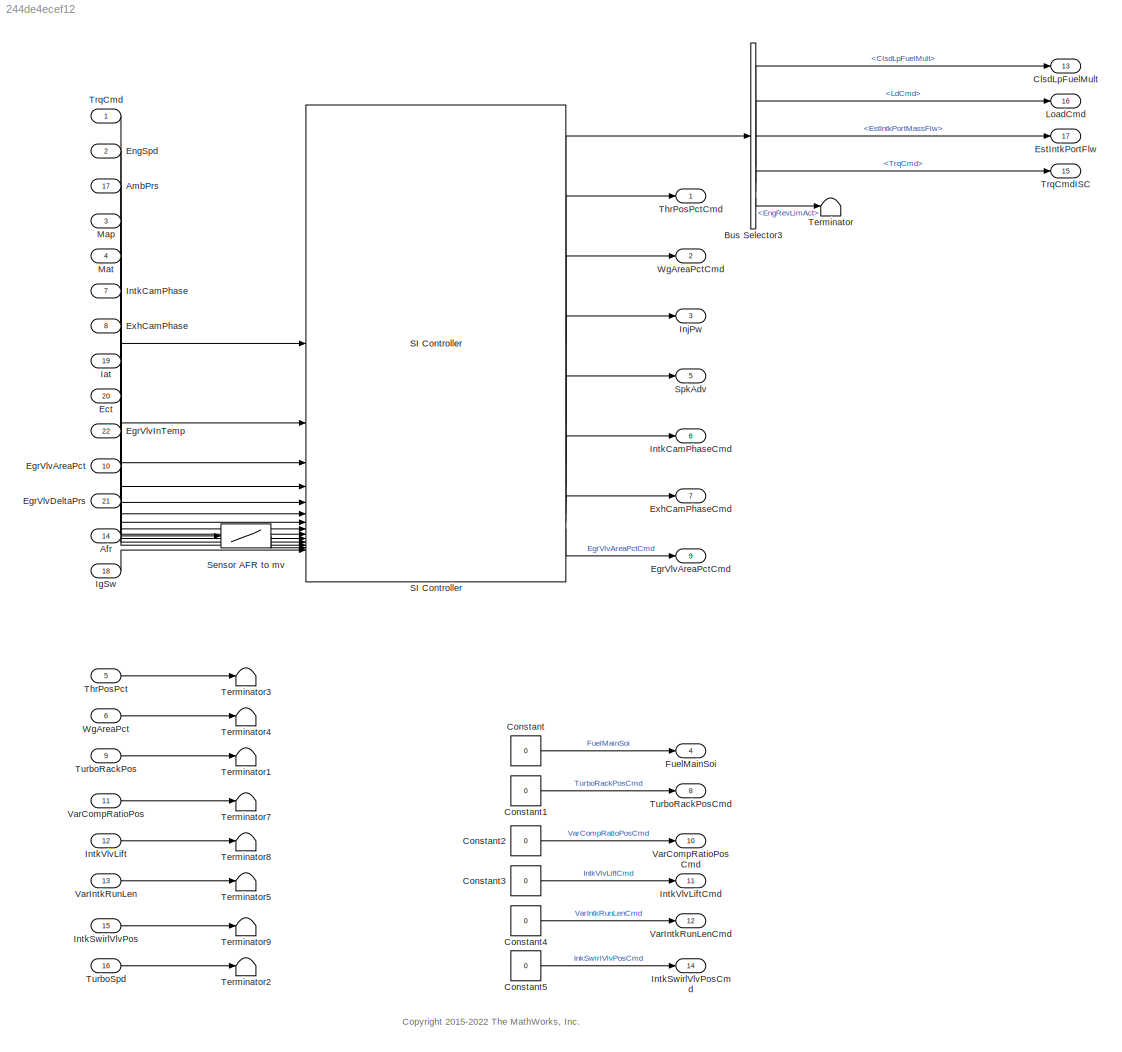
MODEL slx_244de4ecef12
KIND model
BLOCK [Inport] Afr
  OutDataTypeStr = double
  Port = 14
  PortDimensions = 1
  Unit = 1
BLOCK [Inport] AmbPrs
  OutDataTypeStr = double
  Port = 17
  PortDimensions = 1
  Unit = Pa
BLOCK [BusSelector] Bus Selector3
  OutputSignals = ClsdLpFuelMult,LdCmd,EstIntkPortMassFlw,TrqCmd,EngRevLimAct
BLOCK [Outport] ClsdLpFuelMult
  OutDataTypeStr = double
  Port = 13
  PortDimensions = 1
  Unit = 1
  VectorParamsAs1DForOutWhenUnconnected = off
BLOCK [Constant] Constant
  SampleTime = -1
  Value = 0
BLOCK [Constant] Constant1
  SampleTime = -1
  Value = 0
BLOCK [Constant] Constant2
  SampleTime = -1
  Value = 0
BLOCK [Constant] Constant3
  SampleTime = -1
  Value = 0
BLOCK [Constant] Constant4
  SampleTime = -1
  Value = 0
BLOCK [Constant] Constant5
  SampleTime = -1
  Value = 0
BLOCK [Inport] Ect
  OutDataTypeStr = double
  Port = 20
  PortDimensions = 1
  Unit = K
BLOCK [Inport] EgrVlvAreaPct
  OutDataTypeStr = double
  Port = 10
  PortDimensions = 1
  Unit = %
BLOCK [Outport] EgrVlvAreaPctCmd
  OutDataTypeStr = double
  Port = 9
  PortDimensions = 1
  Unit = %
  VectorParamsAs1DForOutWhenUnconnected = off
BLOCK [Inport] EgrVlvDeltaPrs
  OutDataTypeStr = double
  Port = 21
  PortDimensions = 1
  Unit = Pa
BLOCK [Inport] EgrVlvInTemp
  OutDataTypeStr = double
  Port = 22
  PortDimensions = 1
  Unit = K
BLOCK [Inport] EngSpd
  OutDataTypeStr = double
  Port = 2
  PortDimensions = 1
  Unit = rpm
BLOCK [Outport] EstIntkPortFlw
  OutDataTypeStr = double
  Port = 17
  PortDimensions = 1
  Unit = kg/s
  VectorParamsAs1DForOutWhenUnconnected = off
BLOCK [Inport] ExhCamPhase
  OutDataTypeStr = double
  Port = 8
  PortDimensions = 1
  Unit = deg
BLOCK [Outport] ExhCamPhaseCmd
  OutDataTypeStr = double
  Port = 7
  PortDimensions = 1
  Unit = deg
  VectorParamsAs1DForOutWhenUnconnected = off
BLOCK [Outport] FuelMainSoi
  OutDataTypeStr = double
  Port = 4
  PortDimensions = 1
  Unit = deg
  VectorParamsAs1DForOutWhenUnconnected = off
BLOCK [Inport] Iat
  OutDataTypeStr = double
  Port = 19
  PortDimensions = 1
  Unit = K
BLOCK [Inport] IgSw
  OutDataTypeStr = boolean
  Port = 18
  PortDimensions = 1
BLOCK [Outport] InjPw
  OutDataTypeStr = double
  Port = 3
  PortDimensions = 1
  Unit = ms
  VectorParamsAs1DForOutWhenUnconnected = off
BLOCK [Inport] IntkCamPhase
  OutDataTypeStr = double
  Port = 7
  PortDimensions = 1
  Unit = deg
BLOCK [Outport] IntkCamPhaseCmd
  OutDataTypeStr = double
  Port = 6
  PortDimensions = 1
  Unit = deg
  VectorParamsAs1DForOutWhenUnconnected = off
BLOCK [Inport] IntkSwirlVlvPos
  OutDataTypeStr = double
  Port = 15
  PortDimensions = 1
BLOCK [Outport] IntkSwirlVlvPosCmd
  OutDataTypeStr = double
  Port = 14
  PortDimensions = 1
  VectorParamsAs1DForOutWhenUnconnected = off
BLOCK [Inport] IntkVlvLift
  OutDataTypeStr = double
  Port = 12
  PortDimensions = 1
BLOCK [Outport] IntkVlvLiftCmd
  OutDataTypeStr = double
  Port = 11
  PortDimensions = 1
  VectorParamsAs1DForOutWhenUnconnected = off
BLOCK [Outport] LoadCmd
  OutDataTypeStr = double
  Port = 16
  PortDimensions = 1
  Unit = 1
  VectorParamsAs1DForOutWhenUnconnected = off
BLOCK [Inport] Map
  OutDataTypeStr = double
  Port = 3
  PortDimensions = 1
  Unit = Pa
BLOCK [Inport] Mat
  OutDataTypeStr = double
  Port = 4
  PortDimensions = 1
  Unit = K
BLOCK [Reference] SI Controller  REF=autolibengctrlr/SI Controller
  SourceBlock = autolibengctrlr/SI Controller
  SourceType = SI Controller
BLOCK [Lookup] Sensor AFR to mv
  InputValues = [14.4540   14.6000   14.7460]
  LookUpMeth = Interpolation-Use End Values
  SaturateOnIntegerOverflow = off
  Table = [950   450    50]
BLOCK [Outport] SpkAdv
  OutDataTypeStr = double
  Port = 5
  PortDimensions = 1
  Unit = deg
  VectorParamsAs1DForOutWhenUnconnected = off
BLOCK [Terminator] Terminator
BLOCK [Terminator] Terminator1
BLOCK [Terminator] Terminator2
BLOCK [Terminator] Terminator3
BLOCK [Terminator] Terminator4
BLOCK [Terminator] Terminator5
BLOCK [Terminator] Terminator7
BLOCK [Terminator] Terminator8
BLOCK [Terminator] Terminator9
BLOCK [Inport] ThrPosPct
  OutDataTypeStr = double
  Port = 5
  PortDimensions = 1
  Unit = %
BLOCK [Outport] ThrPosPctCmd
  OutDataTypeStr = double
  PortDimensions = 1
  Unit = %
  VectorParamsAs1DForOutWhenUnconnected = off
BLOCK [Inport] TrqCmd
  OutDataTypeStr = double
  PortDimensions = 1
  Unit = N*m
BLOCK [Outport] TrqCmdISC
  OutDataTypeStr = double
  Port = 15
  PortDimensions = 1
  Unit = N*m
  VectorParamsAs1DForOutWhenUnconnected = off
BLOCK [Inport] TurboRackPos
  OutDataTypeStr = double
  Port = 9
  PortDimensions = 1
  Unit = 1
BLOCK [Outport] TurboRackPosCmd
  OutDataTypeStr = double
  Port = 8
  PortDimensions = 1
  Unit = 1
  VectorParamsAs1DForOutWhenUnconnected = off
BLOCK [Inport] TurboSpd
  OutDataTypeStr = double
  Port = 16
  PortDimensions = 1
  Unit = rpm
BLOCK [Inport] VarCompRatioPos
  OutDataTypeStr = double
  Port = 11
  PortDimensions = 1
BLOCK [Outport] VarCompRatioPosCmd
  OutDataTypeStr = double
  Port = 10
  PortDimensions = 1
  VectorParamsAs1DForOutWhenUnconnected = off
BLOCK [Inport] VarIntkRunLen
  OutDataTypeStr = double
  Port = 13
  PortDimensions = 1
BLOCK [Outport] VarIntkRunLenCmd
  OutDataTypeStr = double
  Port = 12
  PortDimensions = 1
  VectorParamsAs1DForOutWhenUnconnected = off
BLOCK [Inport] WgAreaPct
  OutDataTypeStr = double
  Port = 6
  PortDimensions = 1
  Unit = %
BLOCK [Outport] WgAreaPctCmd
  OutDataTypeStr = double
  Port = 2
  PortDimensions = 1
  Unit = %
  VectorParamsAs1DForOutWhenUnconnected = off
ANNOTATION (root): <copyright redacted>
LINE Afr:1 -> Sensor AFR to mv:1
LINE AmbPrs:1 -> SI Controller:3
LINE Bus Selector3:1 -> ClsdLpFuelMult:1
LINE Bus Selector3:2 -> LoadCmd:1
LINE Bus Selector3:3 -> EstIntkPortFlw:1
LINE Bus Selector3:4 -> TrqCmdISC:1
LINE Bus Selector3:5 -> Terminator:1
LINE Constant1:1 -> TurboRackPosCmd:1
LINE Constant2:1 -> VarCompRatioPosCmd:1
LINE Constant3:1 -> IntkVlvLiftCmd:1
LINE Constant4:1 -> VarIntkRunLenCmd:1
LINE Constant5:1 -> IntkSwirlVlvPosCmd:1
LINE Constant:1 -> FuelMainSoi:1
LINE Ect:1 -> SI Controller:9
LINE EgrVlvAreaPct:1 -> SI Controller:11
LINE EgrVlvDeltaPrs:1 -> SI Controller:12
LINE EgrVlvInTemp:1 -> SI Controller:10
LINE EngSpd:1 -> SI Controller:2
LINE ExhCamPhase:1 -> SI Controller:7
LINE Iat:1 -> SI Controller:8
LINE IgSw:1 -> SI Controller:14
LINE IntkCamPhase:1 -> SI Controller:6
LINE IntkSwirlVlvPos:1 -> Terminator9:1
LINE IntkVlvLift:1 -> Terminator8:1
LINE Map:1 -> SI Controller:4
LINE Mat:1 -> SI Controller:5
LINE SI Controller:1 -> Bus Selector3:1
LINE SI Controller:2 -> ThrPosPctCmd:1
LINE SI Controller:3 -> WgAreaPctCmd:1
LINE SI Controller:4 -> InjPw:1
LINE SI Controller:5 -> SpkAdv:1
LINE SI Controller:6 -> IntkCamPhaseCmd:1
LINE SI Controller:7 -> ExhCamPhaseCmd:1
LINE SI Controller:8 -> EgrVlvAreaPctCmd:1
LINE Sensor AFR to mv:1 -> SI Controller:13
LINE ThrPosPct:1 -> Terminator3:1
LINE TrqCmd:1 -> SI Controller:1
LINE TurboRackPos:1 -> Terminator1:1
LINE TurboSpd:1 -> Terminator2:1
LINE VarCompRatioPos:1 -> Terminator7:1
LINE VarIntkRunLen:1 -> Terminator5:1
LINE WgAreaPct:1 -> Terminator4:1
